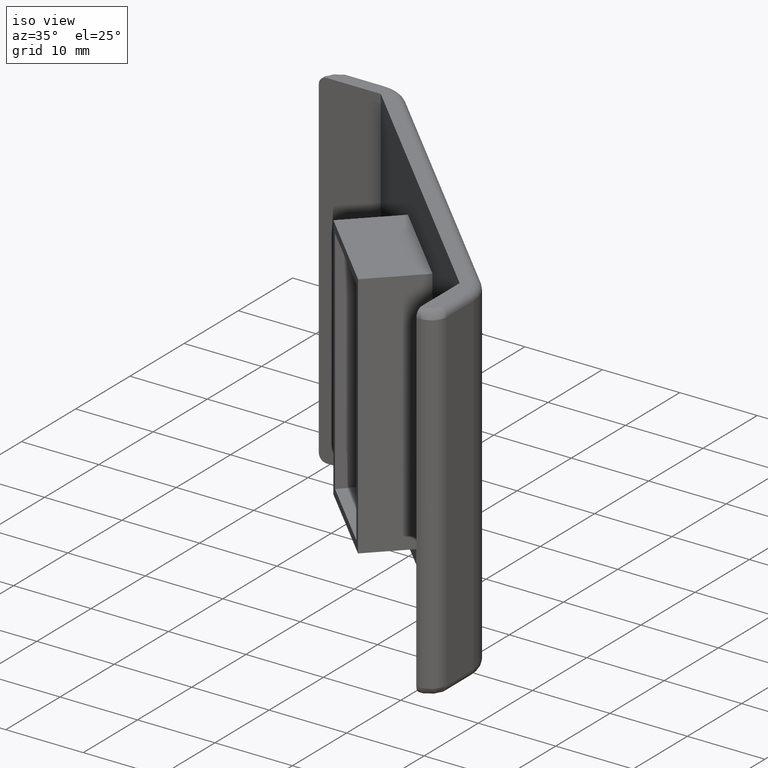
[diagram: clean part render]
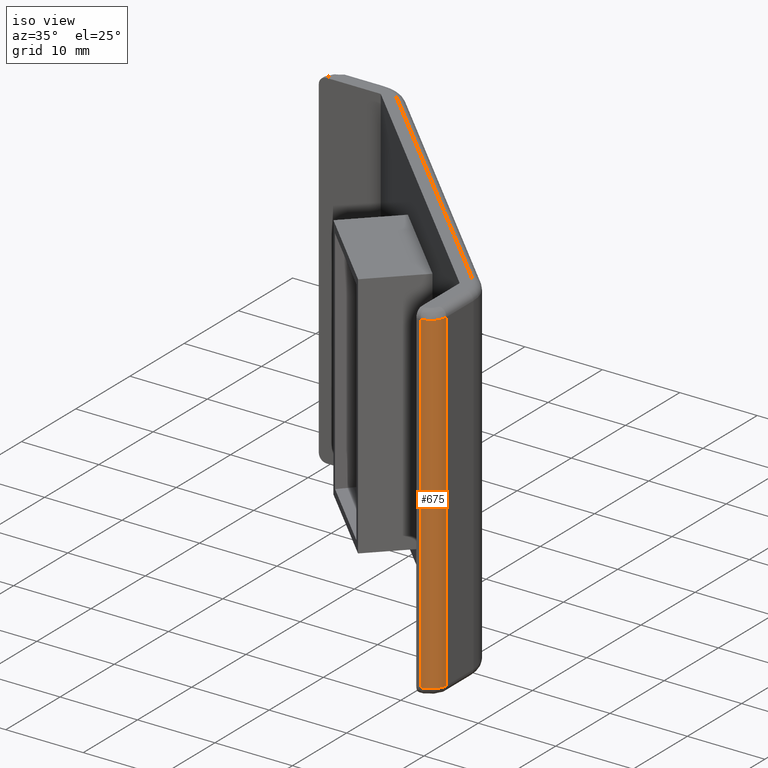
[diagram: same view with one face highlighted and labeled with its STEP entity id]
A machine part, iso view. The second image highlights one B-rep face of the part: STEP entity #675.
In plain terms, the highlighted cylindrical surface (edge-blend (fillet) strip) has radius 2 mm, axis along (0, 0, -1).
Its self-contained STEP definition (entity closure, byte-faithful):
#26=CYLINDRICAL_SURFACE('',#731,2.);
#55=FACE_OUTER_BOUND('',#98,.T.);
#98=EDGE_LOOP('',(#522,#523,#524,#525));
#165=LINE('',#1096,#227);
#171=LINE('',#1107,#233);
#227=VECTOR('',#863,43.);
#233=VECTOR('',#871,43.);
#264=CIRCLE('',#732,2.);
#265=CIRCLE('',#733,2.);
#330=VERTEX_POINT('',#1094);
#331=VERTEX_POINT('',#1095);
#332=VERTEX_POINT('',#1100);
#335=VERTEX_POINT('',#1105);
#397=EDGE_CURVE('',#330,#331,#165,.T.);
#403=EDGE_CURVE('',#335,#332,#171,.T.);
#412=EDGE_CURVE('',#335,#331,#264,.T.);
#413=EDGE_CURVE('',#330,#332,#265,.T.);
#522=ORIENTED_EDGE('',*,*,#403,.F.);
#523=ORIENTED_EDGE('',*,*,#412,.T.);
#524=ORIENTED_EDGE('',*,*,#397,.F.);
#525=ORIENTED_EDGE('',*,*,#413,.T.);
#675=ADVANCED_FACE('',(#55),#26,.T.);
#731=AXIS2_PLACEMENT_3D('',#1126,#884,#885);
#732=AXIS2_PLACEMENT_3D('',#1127,#886,#887);
#733=AXIS2_PLACEMENT_3D('',#1128,#888,#889);
#863=DIRECTION('',(0.,0.,1.));
#871=DIRECTION('',(0.,0.,-1.));
#884=DIRECTION('center_axis',(0.,0.,-1.));
#885=DIRECTION('ref_axis',(-1.,0.,0.));
#886=DIRECTION('center_axis',(0.,0.,-1.));
#887=DIRECTION('ref_axis',(1.,0.,0.));
#888=DIRECTION('center_axis',(0.,0.,1.));
#889=DIRECTION('ref_axis',(1.,0.,0.));
#1094=CARTESIAN_POINT('',(42.5,0.,-21.5));
#1095=CARTESIAN_POINT('',(42.5,0.,21.5));
#1096=CARTESIAN_POINT('',(42.5,0.,22.5));
#1100=CARTESIAN_POINT('',(44.5,2.,-21.5));
#1105=CARTESIAN_POINT('',(44.5,2.,21.5));
#1107=CARTESIAN_POINT('',(44.5,2.,22.5));
#1126=CARTESIAN_POINT('Origin',(42.5,2.,22.5));
#1127=CARTESIAN_POINT('Origin',(42.5,2.,21.5));
#1128=CARTESIAN_POINT('Origin',(42.5,2.,-21.5));